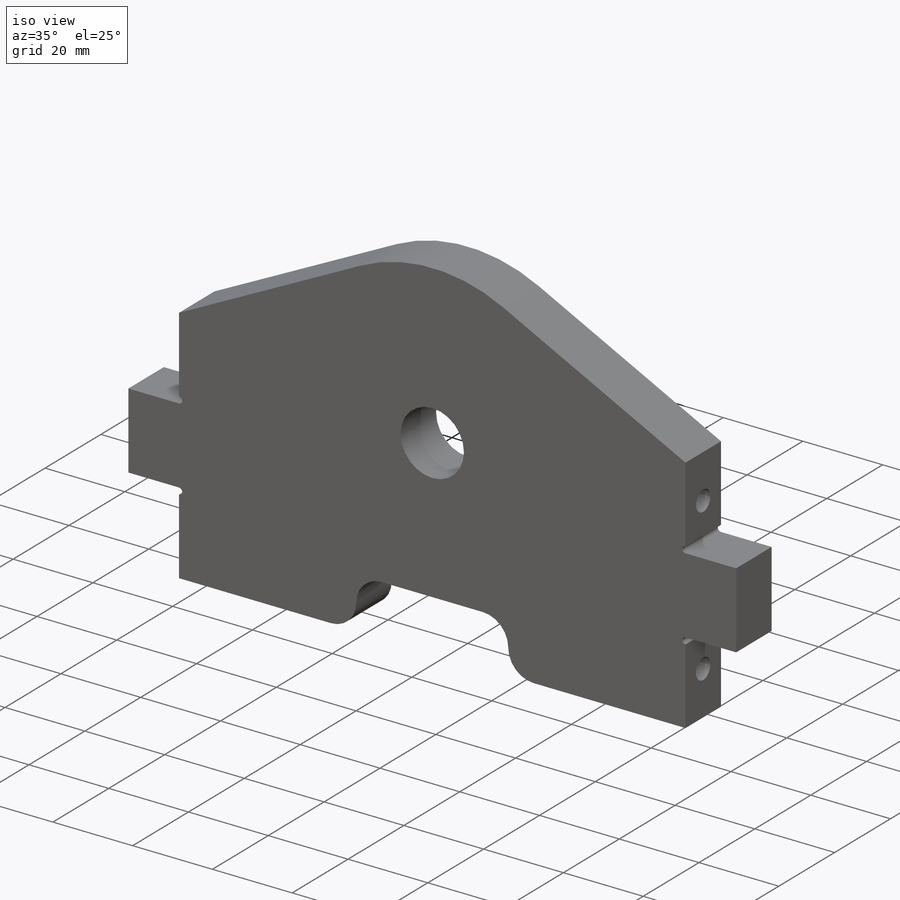
[diagram: iso view]
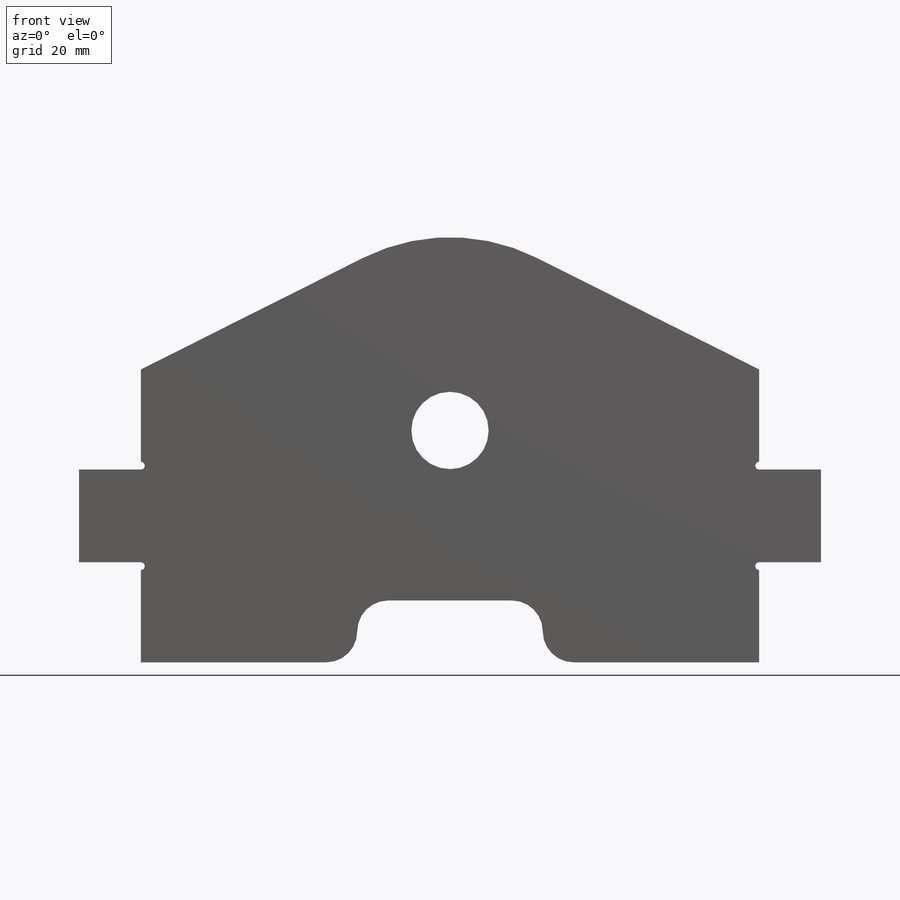
[diagram: front view]
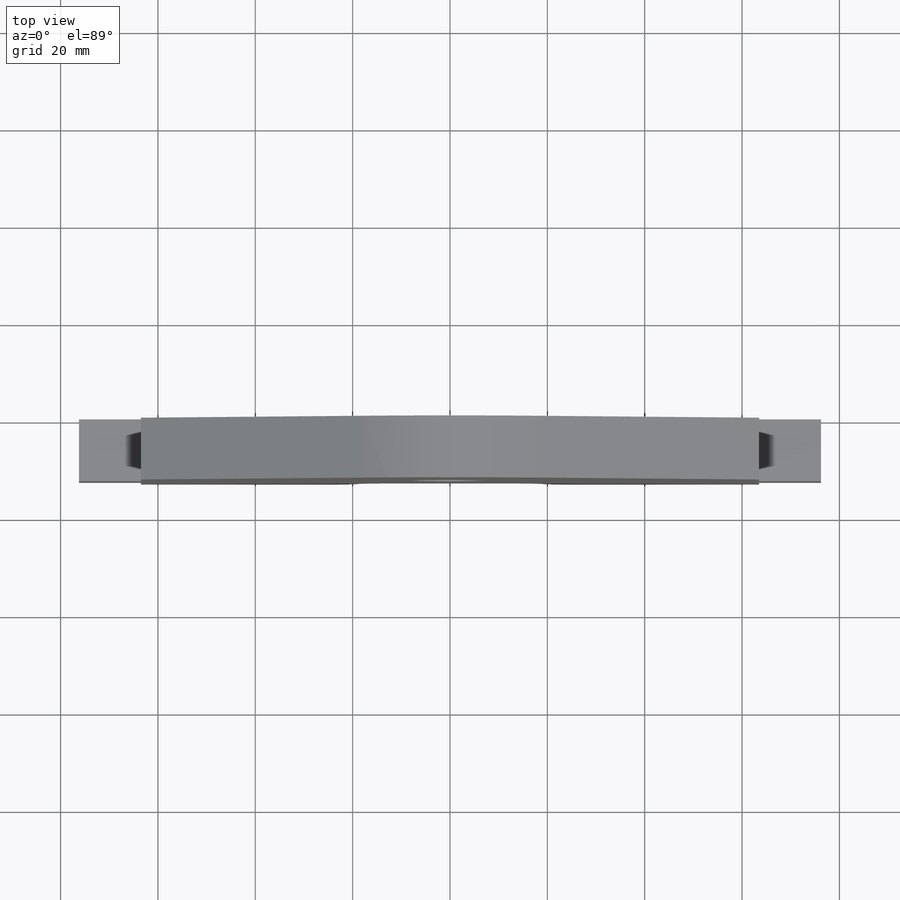
[diagram: top view]
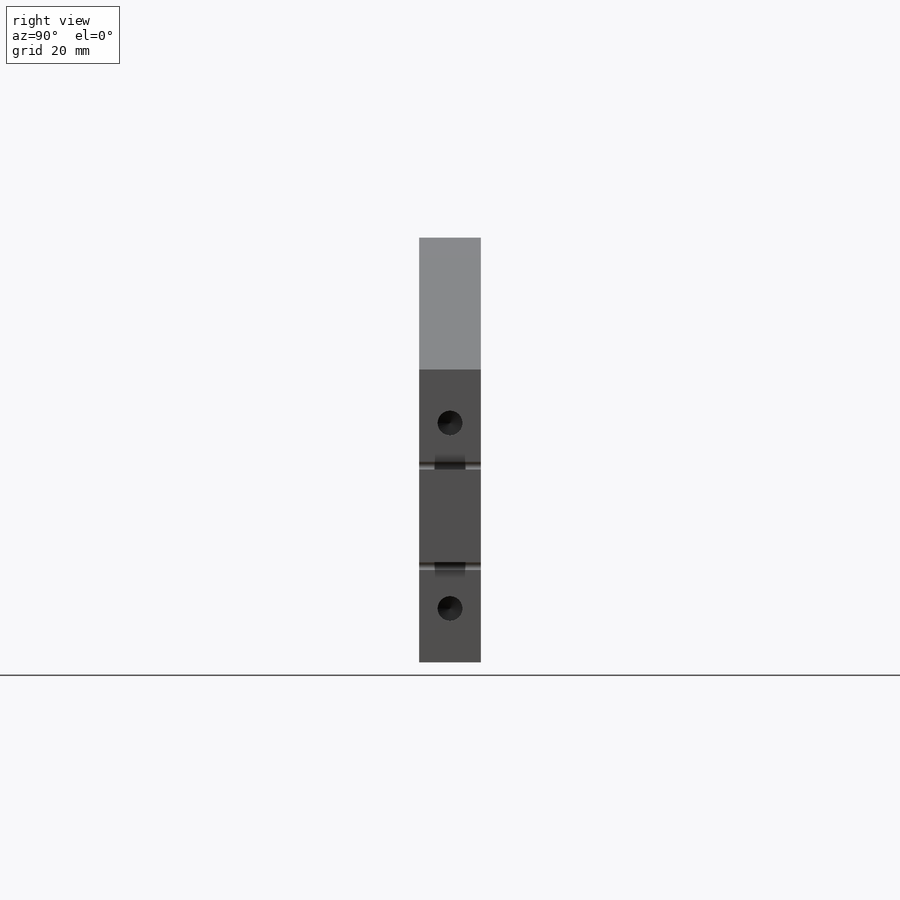
[diagram: right view]
SOLIDWORKS PART (.sldprt)
format: sldprt  version: not decoded by parser v0  size: 287,232 bytes
history: native  units: mm
features: sketch x8, extrude x3, cut_extrude x3, material x1, fillet x1, hole x1, mirror x1 (+13 scaffold rows collapsed)
feature tree (31):
  scaffold x13  (default folders/planes/origin — collapsed)
  material  "6061-T6 (SS)"
  sketch  "Sketch1"  dims[c1.D1=~41.053983mm c1.D2=~38.044161mm c2.D1=127.0mm c2.D2=152.4mm]
  extrude  "Boss-Extrude1"  Depth=12.7mm
  sketch  "Sketch2"  dims[D1=~0.932679mm D2=95.423mm]
  cut_extrude  "Cut-Extrude1"  [1 undecoded]
  sketch  "Sketch3"  dims[D1=3.175mm D2=127.0mm]
  extrude  "Boss-Extrude2"  Depth=12.7mm
  sketch  "Sketch4"  dims[c1.D1=~10.07547mm c1.D2=~38.510599mm c2.D1=44.45mm c2.D2=44.45mm c2.D3=12.7mm]
  cut_extrude  "Cut-Extrude2"  [1 undecoded]
  fillet  "Fillet1"  Radius=6.35mm
  hole  "1/4-20 Tapped Hole1"  Diameter=5.1054mm Depth=16.51mm
  sketch  "Sketch6"  dims[D1=19.05mm]
  sketch  "Sketch5"  dims[hole-wizard template sketch: 50 standard entries collapsed; hole parameters above]
  sketch  "Sketch7"  dims[c1.D1=~22.114168mm c1.D2=12.7mm c2.D1=19.05mm]
  extrude  "Boss-Extrude3"  Depth=12.7mm
  sketch  "Sketch8"  dims[D1=1.5875mm]
  cut_extrude  "Cut-Extrude3"  [1 undecoded]
  mirror  "Mirror1"
decode coverage: 13 of 17 modeling features carry decoded parameters
note: ~ marks probable driven/reference dimensions
note: 3 parameter values undecoded
summary: no parameter record found for 3 features
note: suppression state not decoded; provenance and decode notes live in map.json
